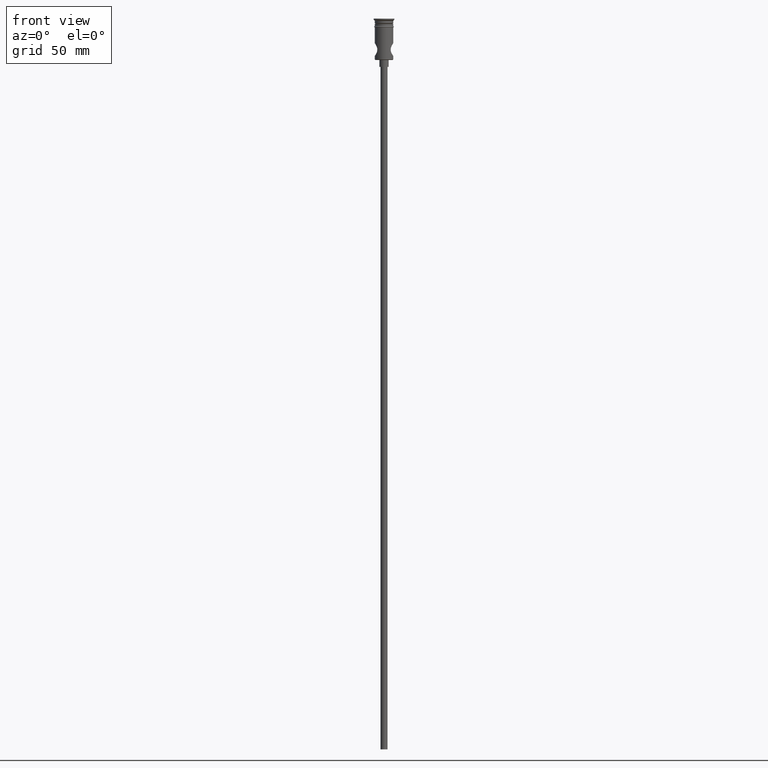
[diagram: clean part render]
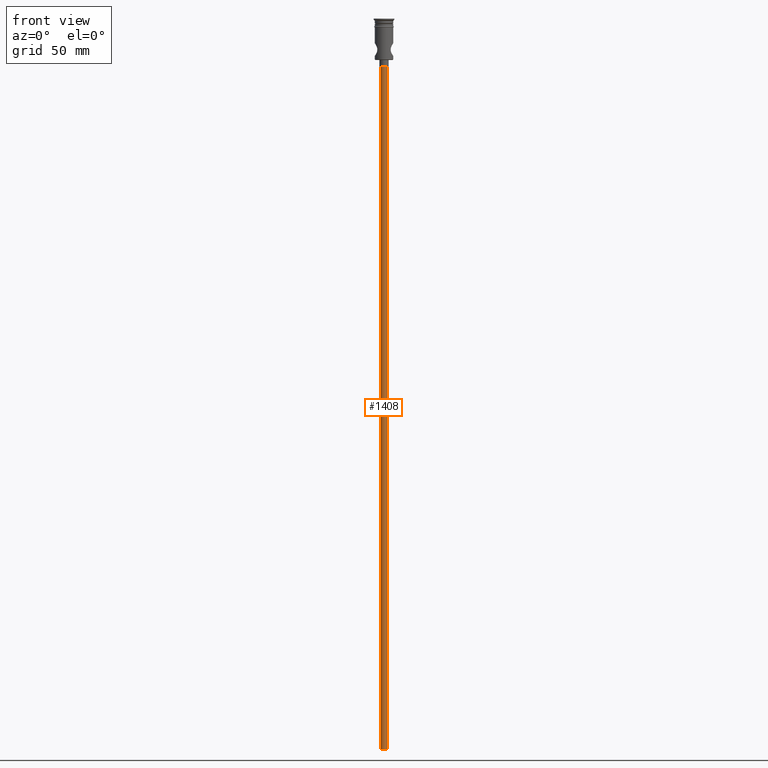
[diagram: same view with one face highlighted and labeled with its STEP entity id]
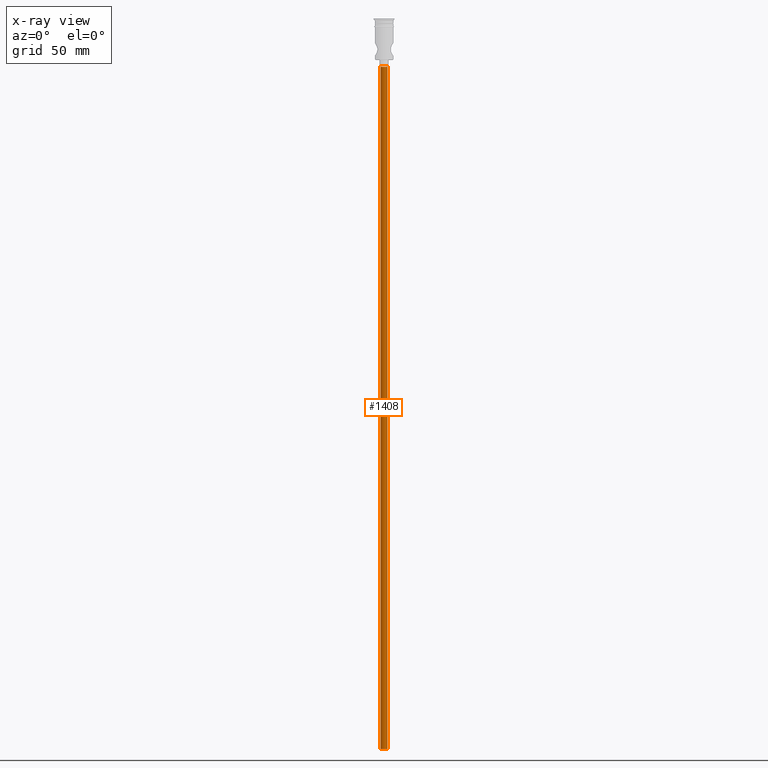
[diagram: x-ray of the same camera — body ghosted, the highlighted face saturated]
A machine part, front view. The second image highlights one B-rep face of the part: STEP entity #1408.
The next image is the same camera in x-ray: the body ghosted, the highlighted face saturated — about 0% of this face is hidden behind the body in this view.
In plain terms, the highlighted cylindrical surface (edge-blend (fillet) strip) has radius 1.5 mm, axis along (-0, -0, 1).
Its self-contained STEP definition (entity closure, byte-faithful):
#3 = EDGE_LOOP ( 'NONE', ( #1077, #448, #607, #1283 ) ) ;
#136 = EDGE_CURVE ( 'NONE', #664, #577, #1049, .T. ) ;
#162 = DIRECTION ( 'NONE',  ( 0.000000000000000000, 0.000000000000000000, -1.000000000000000000 ) ) ;
#181 = CYLINDRICAL_SURFACE ( 'NONE', #314, 1.500000000000000222 ) ;
#233 = DIRECTION ( 'NONE',  ( -0.000000000000000000, -0.000000000000000000, 1.000000000000000000 ) ) ;
#246 = CIRCLE ( 'NONE', #411, 1.500000000000000222 ) ;
#305 = CARTESIAN_POINT ( 'NONE',  ( -1.500000000000000222, 1.836970198721030181E-16, -20.99999999999999645 ) ) ;
#314 = AXIS2_PLACEMENT_3D ( 'NONE', #1060, #834, #1176 ) ;
#331 = VECTOR ( 'NONE', #850, 1000.000000000000000 ) ;
#355 = EDGE_CURVE ( 'NONE', #1152, #693, #1235, .T. ) ;
#411 = AXIS2_PLACEMENT_3D ( 'NONE', #632, #162, #1069 ) ;
#448 = ORIENTED_EDGE ( 'NONE', *, *, #1412, .F. ) ;
#502 = CARTESIAN_POINT ( 'NONE',  ( 1.500000000000000222, 0.000000000000000000, -318.0000000000000000 ) ) ;
#565 = CARTESIAN_POINT ( 'NONE',  ( 0.000000000000000000, 0.000000000000000000, -20.99999999999999645 ) ) ;
#573 = CIRCLE ( 'NONE', #1083, 1.500000000000000222 ) ;
#577 = VERTEX_POINT ( 'NONE', #809 ) ;
#607 = ORIENTED_EDGE ( 'NONE', *, *, #136, .T. ) ;
#623 = CARTESIAN_POINT ( 'NONE',  ( -1.500000000000000222, 1.836970198721030181E-16, -318.0000000000000000 ) ) ;
#632 = CARTESIAN_POINT ( 'NONE',  ( 0.000000000000000000, 0.000000000000000000, -318.0000000000000000 ) ) ;
#664 = VERTEX_POINT ( 'NONE', #744 ) ;
#693 = VERTEX_POINT ( 'NONE', #305 ) ;
#734 = FACE_OUTER_BOUND ( 'NONE', #3, .T. ) ;
#744 = CARTESIAN_POINT ( 'NONE',  ( 1.500000000000000222, 0.000000000000000000, -318.0000000000000000 ) ) ;
#792 = EDGE_CURVE ( 'NONE', #577, #693, #573, .T. ) ;
#809 = CARTESIAN_POINT ( 'NONE',  ( 1.500000000000000222, 0.000000000000000000, -20.99999999999999645 ) ) ;
#834 = DIRECTION ( 'NONE',  ( -0.000000000000000000, -0.000000000000000000, 1.000000000000000000 ) ) ;
#850 = DIRECTION ( 'NONE',  ( -0.000000000000000000, -0.000000000000000000, 1.000000000000000000 ) ) ;
#978 = CARTESIAN_POINT ( 'NONE',  ( -1.500000000000000222, 1.836970198721030181E-16, -318.0000000000000000 ) ) ;
#1035 = VECTOR ( 'NONE', #233, 1000.000000000000000 ) ;
#1049 = LINE ( 'NONE', #502, #331 ) ;
#1060 = CARTESIAN_POINT ( 'NONE',  ( 0.000000000000000000, 0.000000000000000000, -318.0000000000000000 ) ) ;
#1069 = DIRECTION ( 'NONE',  ( -1.000000000000000000, 0.000000000000000000, 0.000000000000000000 ) ) ;
#1077 = ORIENTED_EDGE ( 'NONE', *, *, #355, .F. ) ;
#1083 = AXIS2_PLACEMENT_3D ( 'NONE', #565, #1099, #1106 ) ;
#1099 = DIRECTION ( 'NONE',  ( 0.000000000000000000, 0.000000000000000000, -1.000000000000000000 ) ) ;
#1106 = DIRECTION ( 'NONE',  ( -1.000000000000000000, 0.000000000000000000, 0.000000000000000000 ) ) ;
#1152 = VERTEX_POINT ( 'NONE', #623 ) ;
#1176 = DIRECTION ( 'NONE',  ( 1.000000000000000000, 0.000000000000000000, 0.000000000000000000 ) ) ;
#1235 = LINE ( 'NONE', #978, #1035 ) ;
#1283 = ORIENTED_EDGE ( 'NONE', *, *, #792, .T. ) ;
#1408 = ADVANCED_FACE ( 'NONE', ( #734 ), #181, .T. ) ;
#1412 = EDGE_CURVE ( 'NONE', #664, #1152, #246, .T. ) ;